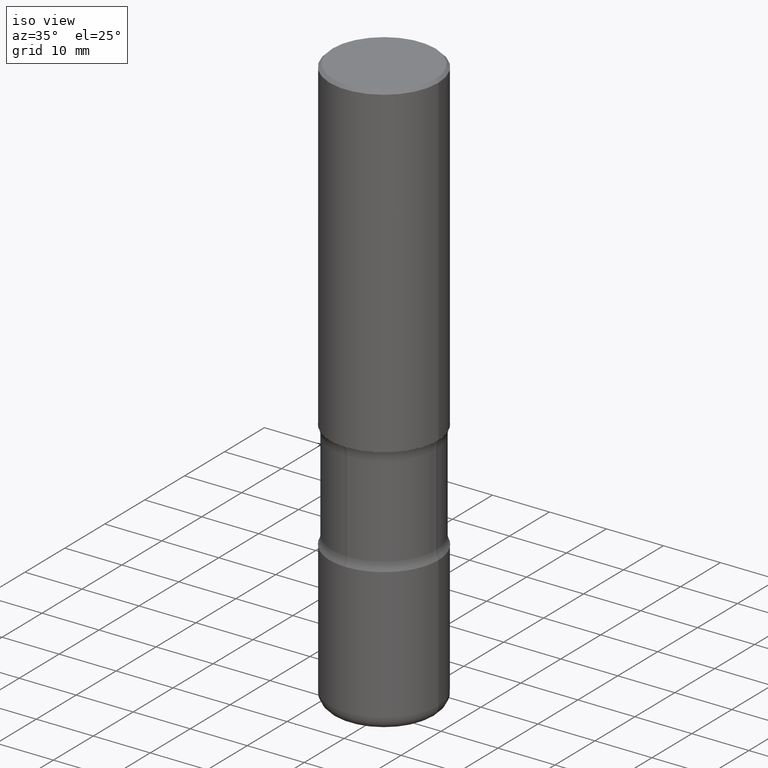
[diagram: clean part render]
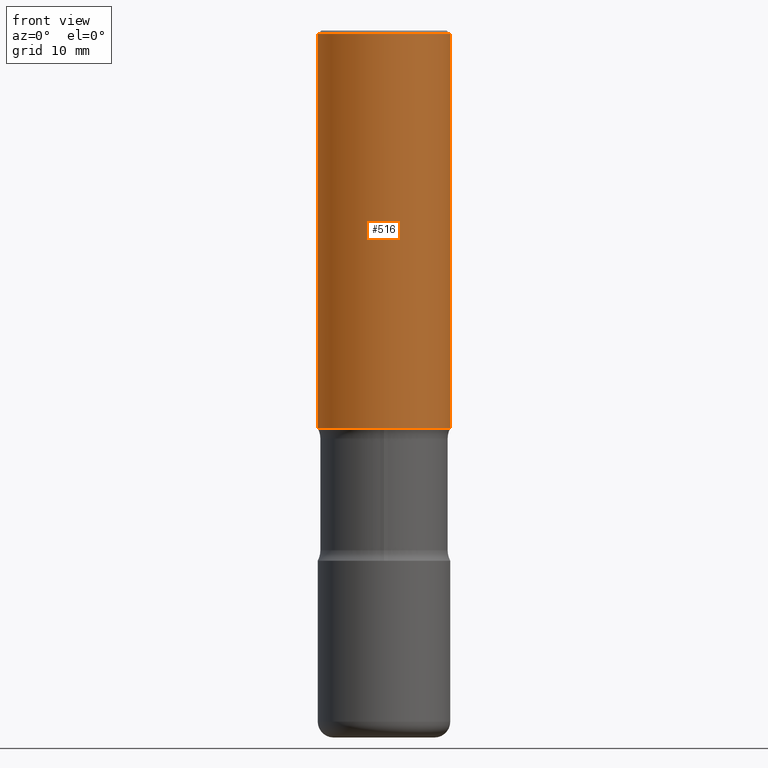
[diagram: tour spotlight — one face highlighted and labeled with its STEP entity id]
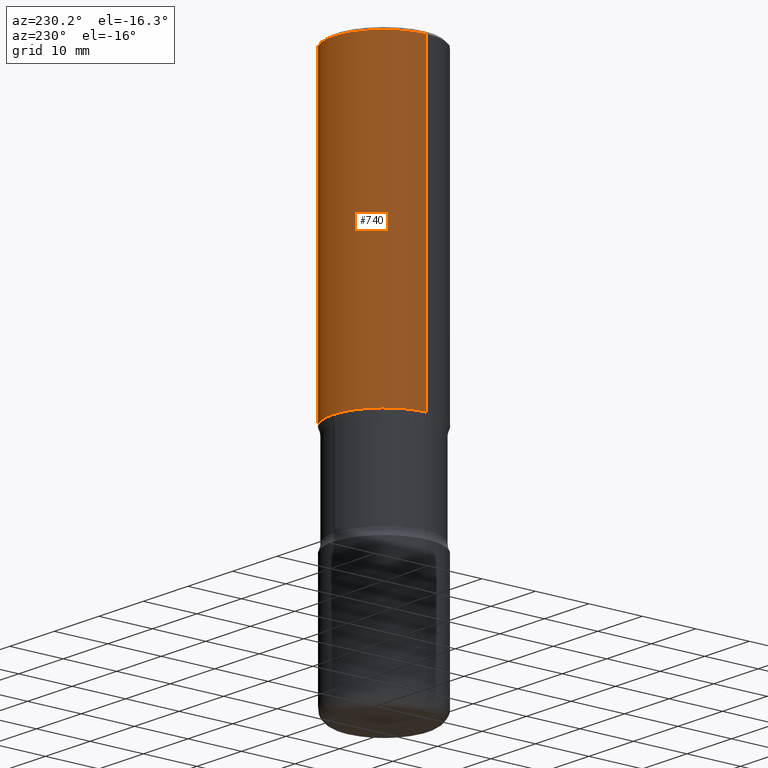
[diagram: tour spotlight — one face highlighted and labeled with its STEP entity id]
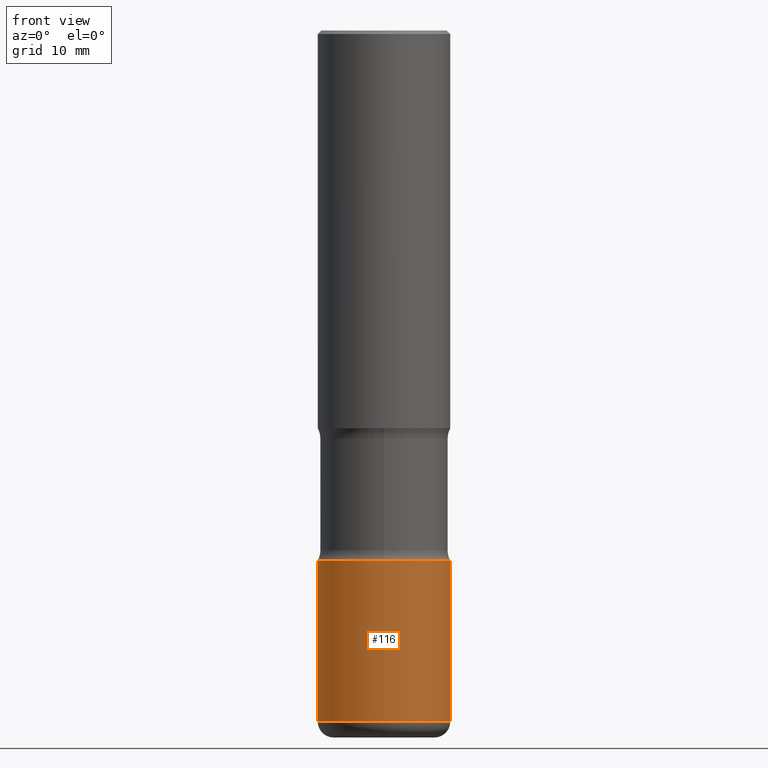
[diagram: tour spotlight — one face highlighted and labeled with its STEP entity id]
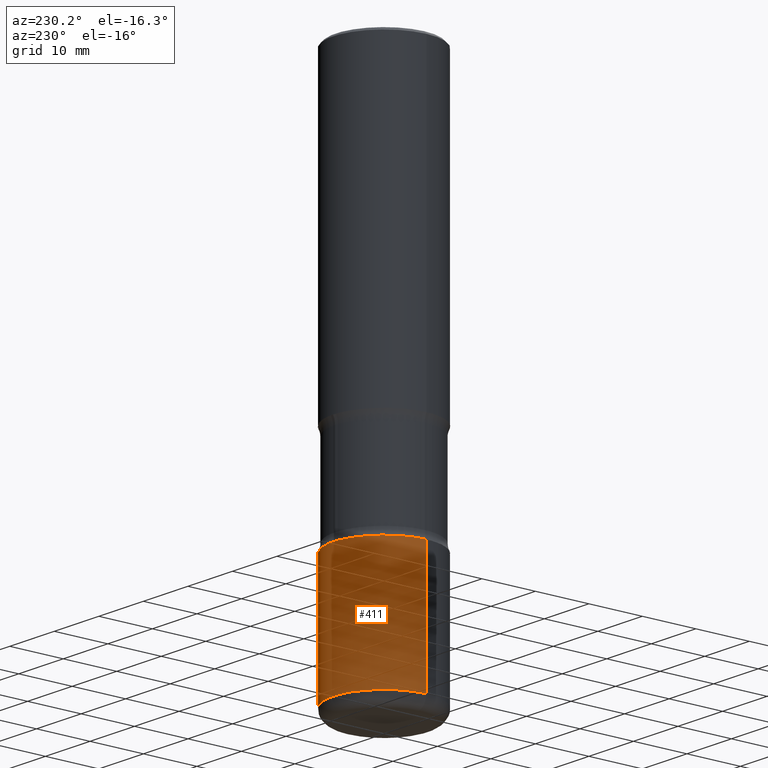
[diagram: tour spotlight — one face highlighted and labeled with its STEP entity id]
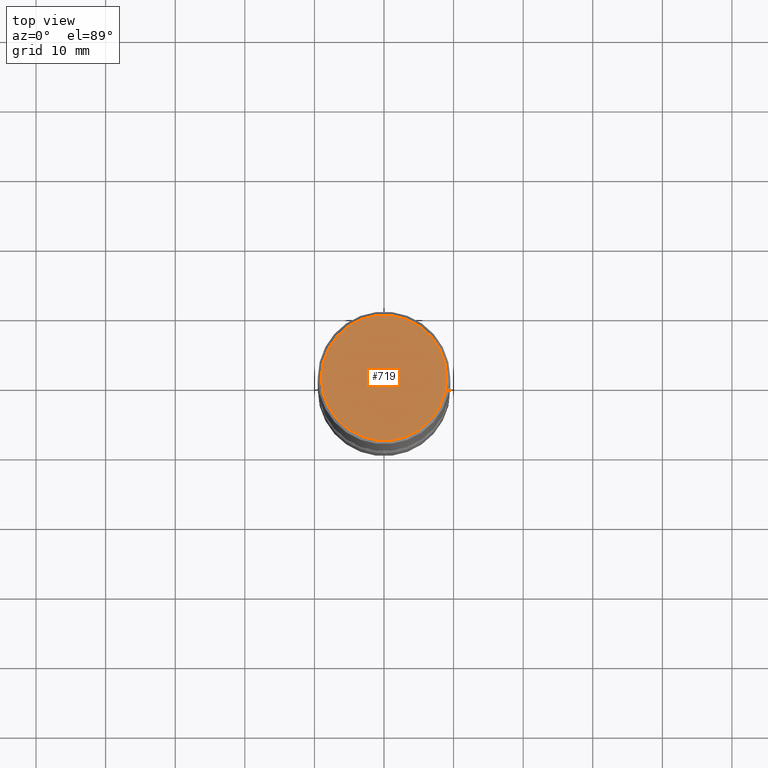
[diagram: tour spotlight — one face highlighted and labeled with its STEP entity id]
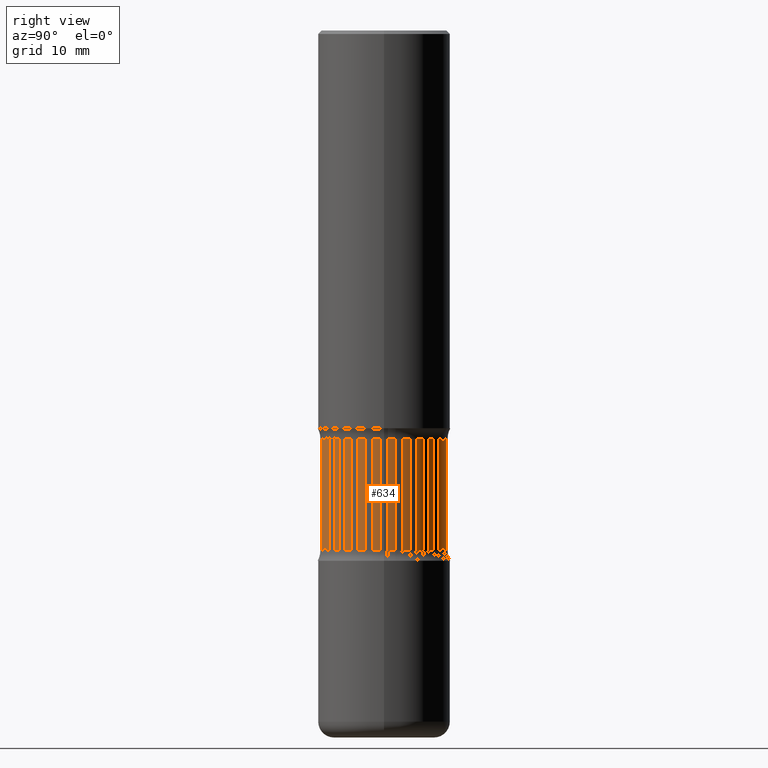
[diagram: tour spotlight — one face highlighted and labeled with its STEP entity id]
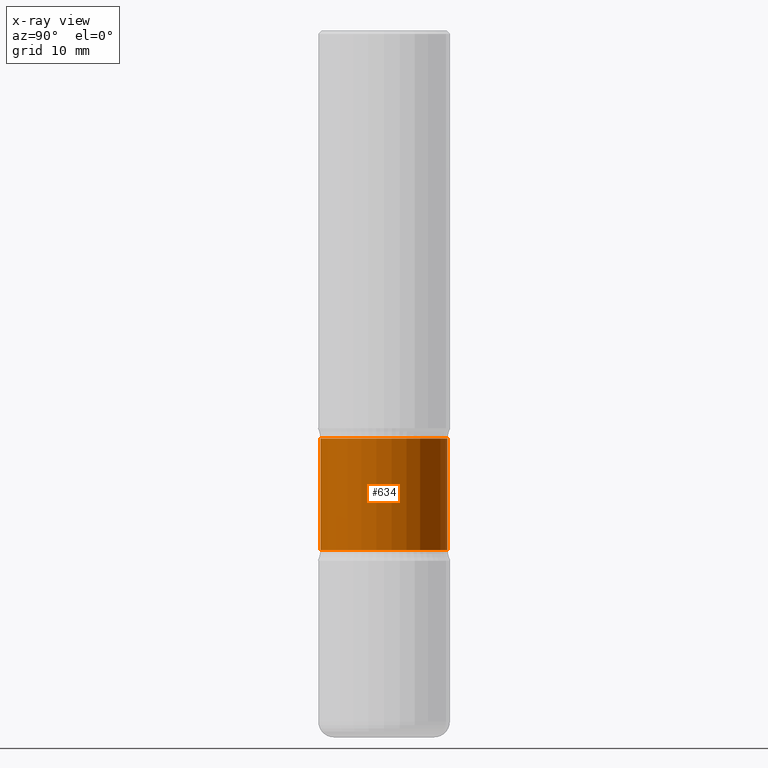
[diagram: x-ray of the same camera — body ghosted, this tour face saturated]
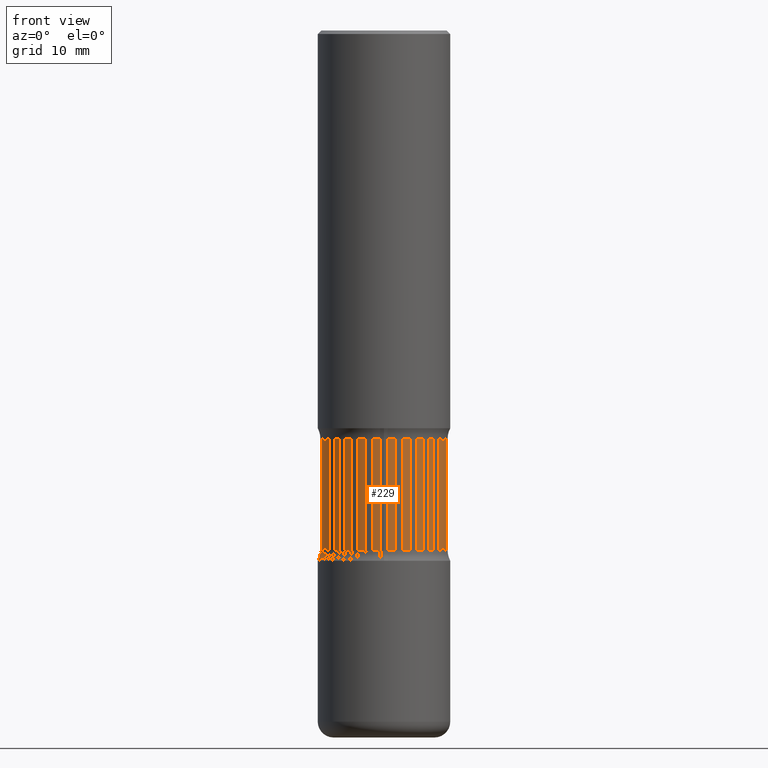
[diagram: tour spotlight — one face highlighted and labeled with its STEP entity id]
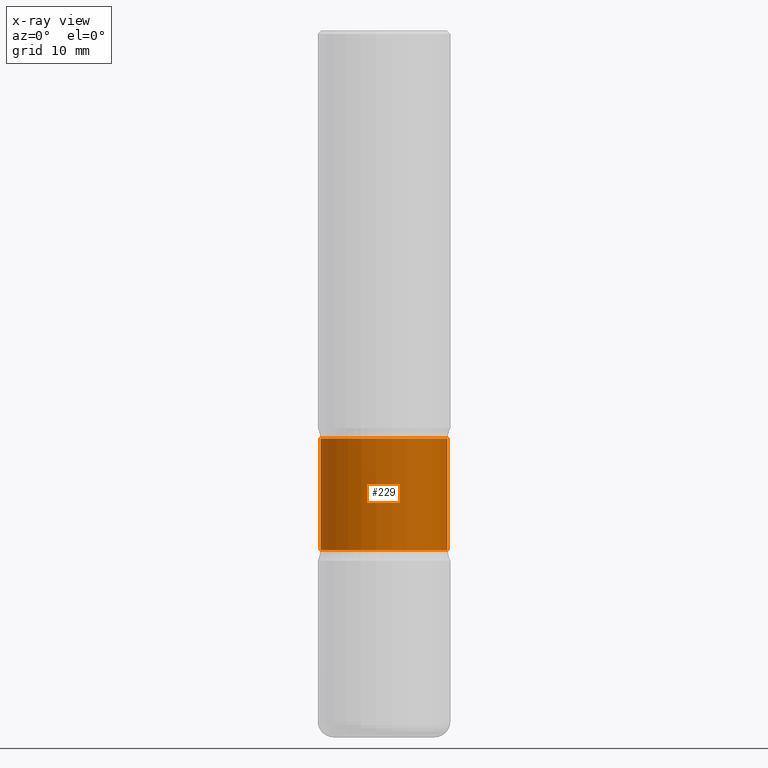
[diagram: x-ray of the same camera — body ghosted, this tour face saturated]
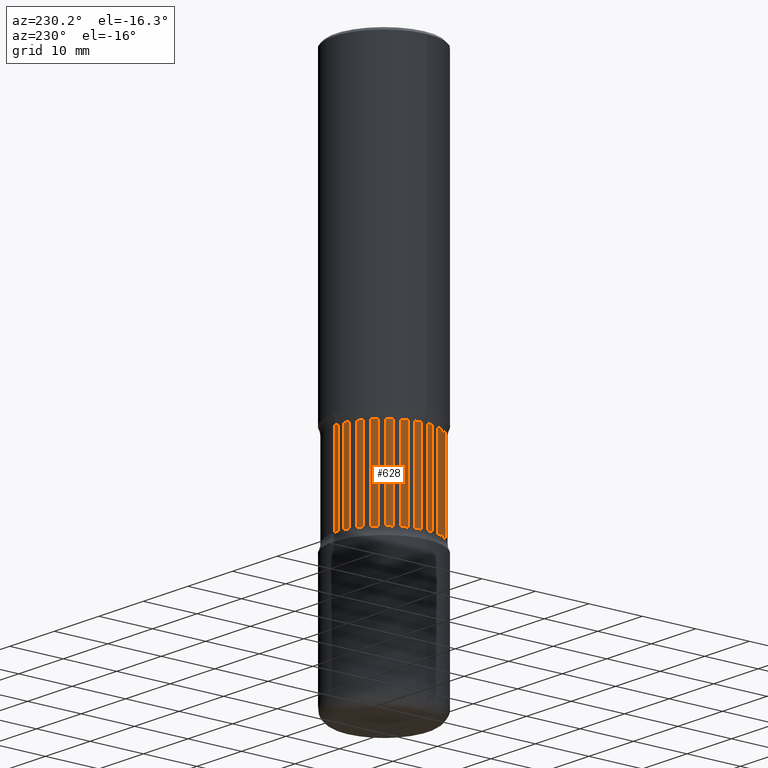
[diagram: tour spotlight — one face highlighted and labeled with its STEP entity id]
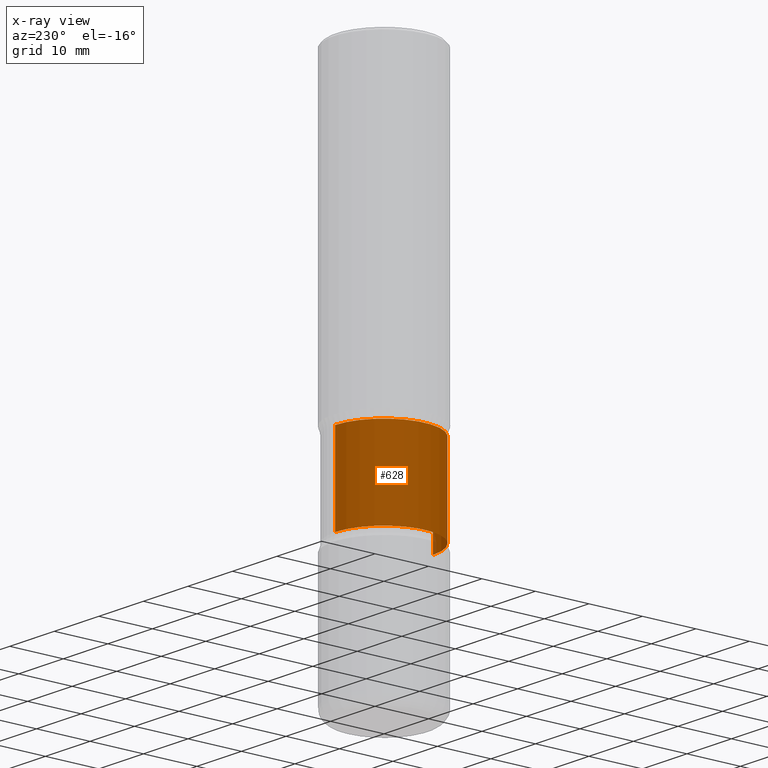
[diagram: x-ray of the same camera — body ghosted, this tour face saturated]
A machine part: a face-by-face anatomy tour. The part has 30 B-rep faces; the first image is the clean iso view, then the 8 largest visible faces are spotlighted one at a time (largest first), each with its STEP entity span.

Face 1 — front view, entity #516. In plain terms, the highlighted cylindrical surface (partial cylindrical patch) has radius 9.525 mm, axis along (-0, 0, 1).
Definition (entity closure, byte-faithful):
#9 = FACE_OUTER_BOUND ( 'NONE', #256, .T. ) ;
#36 = DIRECTION ( 'NONE',  ( -2.445468806185136877E-29, 3.491481338843145188E-15, 1.000000000000000000 ) ) ;
#93 = DIRECTION ( 'NONE',  ( -2.445468806185136597E-29, 3.491481338843145583E-15, 1.000000000000000000 ) ) ;
#97 = EDGE_CURVE ( 'NONE', #450, #99, #644, .T. ) ;
#98 = AXIS2_PLACEMENT_3D ( 'NONE', #477, #93, #590 ) ;
#99 = VERTEX_POINT ( 'NONE', #221 ) ;
#107 = CARTESIAN_POINT ( 'NONE',  ( 0.3749999999999996669, -2.642516375941185662E-15, -0.02000000000000008715 ) ) ;
#115 = CARTESIAN_POINT ( 'NONE',  ( -0.3749999999999998335, 2.664535259100374514E-15, -1.844600658845588757E-29 ) ) ;
#153 = CARTESIAN_POINT ( 'NONE',  ( 0.3749999999999998335, -2.618611004132348439E-15, 1.828566290923475082E-29 ) ) ;
#156 = CARTESIAN_POINT ( 'NONE',  ( -0.3749999999999996669, 2.548781377355484352E-15, -0.02000000000000008715 ) ) ;
#160 = LINE ( 'NONE', #153, #288 ) ;
#178 = LINE ( 'NONE', #115, #532 ) ;
#221 = CARTESIAN_POINT ( 'NONE',  ( 0.3750000000000000555, -1.047444401652942689E-14, -2.250000000000000000 ) ) ;
#230 = VERTEX_POINT ( 'NONE', #156 ) ;
#256 = EDGE_LOOP ( 'NONE', ( #746, #386, #766, #560 ) ) ;
#264 = CYLINDRICAL_SURFACE ( 'NONE', #681, 0.3749999999999998335 ) ;
#284 = VERTEX_POINT ( 'NONE', #107 ) ;
#288 = VECTOR ( 'NONE', #36, 39.37007874015748143 ) ;
#297 = DIRECTION ( 'NONE',  ( -2.445468806185136597E-29, 3.491481338843145583E-15, 1.000000000000000000 ) ) ;
#366 = DIRECTION ( 'NONE',  ( 1.000000000000000000, -6.982962677686266711E-15, 0.000000000000000000 ) ) ;
#386 = ORIENTED_EDGE ( 'NONE', *, *, #97, .T. ) ;
#402 = EDGE_CURVE ( 'NONE', #450, #230, #178, .T. ) ;
#450 = VERTEX_POINT ( 'NONE', #540 ) ;
#461 = EDGE_CURVE ( 'NONE', #230, #284, #652, .T. ) ;
#477 = CARTESIAN_POINT ( 'NONE',  ( 5.502304813916557343E-29, -7.855833012397078448E-15, -2.250000000000000000 ) ) ;
#489 = DIRECTION ( 'NONE',  ( -2.445468806185136877E-29, 3.491481338843145188E-15, 1.000000000000000000 ) ) ;
#511 = DIRECTION ( 'NONE',  ( -2.445468806185136597E-29, 3.491481338843145583E-15, 1.000000000000000000 ) ) ;
#515 = CARTESIAN_POINT ( 'NONE',  ( 0.000000000000000000, 0.000000000000000000, 0.000000000000000000 ) ) ;
#516 = ADVANCED_FACE ( 'NONE', ( #9 ), #264, .T. ) ;
#532 = VECTOR ( 'NONE', #489, 39.37007874015748143 ) ;
#540 = CARTESIAN_POINT ( 'NONE',  ( -0.3749999999999999445, -1.298296060486593796E-15, -2.250000000000000000 ) ) ;
#560 = ORIENTED_EDGE ( 'NONE', *, *, #461, .F. ) ;
#590 = DIRECTION ( 'NONE',  ( 1.000000000000000000, -6.982962677686264344E-15, 0.000000000000000000 ) ) ;
#644 = CIRCLE ( 'NONE', #98, 0.3750000000000000555 ) ;
#652 = CIRCLE ( 'NONE', #727, 0.3749999999999996669 ) ;
#681 = AXIS2_PLACEMENT_3D ( 'NONE', #515, #511, #744 ) ;
#688 = EDGE_CURVE ( 'NONE', #99, #284, #160, .T. ) ;
#727 = AXIS2_PLACEMENT_3D ( 'NONE', #788, #297, #366 ) ;
#744 = DIRECTION ( 'NONE',  ( 1.000000000000000000, -6.982962677686265922E-15, 4.876176775795935793E-29 ) ) ;
#746 = ORIENTED_EDGE ( 'NONE', *, *, #402, .F. ) ;
#766 = ORIENTED_EDGE ( 'NONE', *, *, #688, .T. ) ;
#788 = CARTESIAN_POINT ( 'NONE',  ( 4.890937612370294178E-31, -6.982962677686321191E-17, -0.02000000000000008715 ) ) ;

Face 2 — auxiliary view, entity #740. In plain terms, the highlighted cylindrical surface (partial cylindrical patch) has radius 9.525 mm, axis along (-0, 0, 1).
Definition (entity closure, byte-faithful):
#22 = FACE_OUTER_BOUND ( 'NONE', #572, .T. ) ;
#36 = DIRECTION ( 'NONE',  ( -2.445468806185136877E-29, 3.491481338843145188E-15, 1.000000000000000000 ) ) ;
#99 = VERTEX_POINT ( 'NONE', #221 ) ;
#107 = CARTESIAN_POINT ( 'NONE',  ( 0.3749999999999996669, -2.642516375941185662E-15, -0.02000000000000008715 ) ) ;
#115 = CARTESIAN_POINT ( 'NONE',  ( -0.3749999999999998335, 2.664535259100374514E-15, -1.844600658845588757E-29 ) ) ;
#135 = CIRCLE ( 'NONE', #656, 0.3749999999999996669 ) ;
#136 = EDGE_CURVE ( 'NONE', #284, #230, #135, .T. ) ;
#145 = AXIS2_PLACEMENT_3D ( 'NONE', #271, #762, #216 ) ;
#153 = CARTESIAN_POINT ( 'NONE',  ( 0.3749999999999998335, -2.618611004132348439E-15, 1.828566290923475082E-29 ) ) ;
#156 = CARTESIAN_POINT ( 'NONE',  ( -0.3749999999999996669, 2.548781377355484352E-15, -0.02000000000000008715 ) ) ;
#157 = CARTESIAN_POINT ( 'NONE',  ( 4.890937612370294178E-31, -6.982962677686321191E-17, -0.02000000000000008715 ) ) ;
#160 = LINE ( 'NONE', #153, #288 ) ;
#176 = CARTESIAN_POINT ( 'NONE',  ( 5.502304813916557343E-29, -7.855833012397078448E-15, -2.250000000000000000 ) ) ;
#178 = LINE ( 'NONE', #115, #532 ) ;
#193 = CIRCLE ( 'NONE', #465, 0.3750000000000000555 ) ;
#216 = DIRECTION ( 'NONE',  ( 1.000000000000000000, -6.982962677686265922E-15, 4.876176775795935793E-29 ) ) ;
#221 = CARTESIAN_POINT ( 'NONE',  ( 0.3750000000000000555, -1.047444401652942689E-14, -2.250000000000000000 ) ) ;
#230 = VERTEX_POINT ( 'NONE', #156 ) ;
#247 = DIRECTION ( 'NONE',  ( -2.445468806185136597E-29, 3.491481338843145583E-15, 1.000000000000000000 ) ) ;
#271 = CARTESIAN_POINT ( 'NONE',  ( 0.000000000000000000, 0.000000000000000000, 0.000000000000000000 ) ) ;
#284 = VERTEX_POINT ( 'NONE', #107 ) ;
#288 = VECTOR ( 'NONE', #36, 39.37007874015748143 ) ;
#316 = ORIENTED_EDGE ( 'NONE', *, *, #136, .F. ) ;
#327 = ORIENTED_EDGE ( 'NONE', *, *, #402, .T. ) ;
#365 = EDGE_CURVE ( 'NONE', #99, #450, #193, .T. ) ;
#401 = DIRECTION ( 'NONE',  ( -2.445468806185136597E-29, 3.491481338843145583E-15, 1.000000000000000000 ) ) ;
#402 = EDGE_CURVE ( 'NONE', #450, #230, #178, .T. ) ;
#450 = VERTEX_POINT ( 'NONE', #540 ) ;
#451 = CYLINDRICAL_SURFACE ( 'NONE', #145, 0.3749999999999998335 ) ;
#465 = AXIS2_PLACEMENT_3D ( 'NONE', #176, #247, #486 ) ;
#486 = DIRECTION ( 'NONE',  ( 1.000000000000000000, -6.982962677686264344E-15, 0.000000000000000000 ) ) ;
#489 = DIRECTION ( 'NONE',  ( -2.445468806185136877E-29, 3.491481338843145188E-15, 1.000000000000000000 ) ) ;
#532 = VECTOR ( 'NONE', #489, 39.37007874015748143 ) ;
#540 = CARTESIAN_POINT ( 'NONE',  ( -0.3749999999999999445, -1.298296060486593796E-15, -2.250000000000000000 ) ) ;
#572 = EDGE_LOOP ( 'NONE', ( #786, #327, #316, #658 ) ) ;
#656 = AXIS2_PLACEMENT_3D ( 'NONE', #157, #401, #778 ) ;
#658 = ORIENTED_EDGE ( 'NONE', *, *, #688, .F. ) ;
#688 = EDGE_CURVE ( 'NONE', #99, #284, #160, .T. ) ;
#740 = ADVANCED_FACE ( 'NONE', ( #22 ), #451, .T. ) ;
#762 = DIRECTION ( 'NONE',  ( -2.445468806185136597E-29, 3.491481338843145583E-15, 1.000000000000000000 ) ) ;
#778 = DIRECTION ( 'NONE',  ( 1.000000000000000000, -6.982962677686266711E-15, 0.000000000000000000 ) ) ;
#786 = ORIENTED_EDGE ( 'NONE', *, *, #365, .T. ) ;

Face 3 — front view, entity #116. In plain terms, the highlighted cylindrical surface (partial cylindrical patch) has radius 9.525 mm, axis along (-0, 0, 1).
Definition (entity closure, byte-faithful):
#13 = CARTESIAN_POINT ( 'NONE',  ( 9.561783032183883600E-29, -1.365169203487670064E-14, -3.910000000000000142 ) ) ;
#28 = DIRECTION ( 'NONE',  ( -2.445468806185136597E-29, 3.491481338843145583E-15, 1.000000000000000000 ) ) ;
#31 = VERTEX_POINT ( 'NONE', #409 ) ;
#33 = FACE_OUTER_BOUND ( 'NONE', #605, .T. ) ;
#49 = CARTESIAN_POINT ( 'NONE',  ( -0.3749999999999999445, -1.098715677577632337E-14, -3.910000000000000142 ) ) ;
#113 = DIRECTION ( 'NONE',  ( -2.445468806185136597E-29, 3.491481338843145583E-15, 1.000000000000000000 ) ) ;
#116 = ADVANCED_FACE ( 'NONE', ( #33 ), #585, .T. ) ;
#138 = VERTEX_POINT ( 'NONE', #162 ) ;
#162 = CARTESIAN_POINT ( 'NONE',  ( -0.3750000000000000555, -9.398532766602692013E-15, -2.999999999999999556 ) ) ;
#164 = EDGE_CURVE ( 'NONE', #138, #318, #395, .T. ) ;
#290 = ORIENTED_EDGE ( 'NONE', *, *, #730, .F. ) ;
#296 = AXIS2_PLACEMENT_3D ( 'NONE', #524, #28, #718 ) ;
#318 = VERTEX_POINT ( 'NONE', #680 ) ;
#370 = CARTESIAN_POINT ( 'NONE',  ( 0.3750000000000000555, -2.618611004132350016E-15, 1.828566290923476203E-29 ) ) ;
#377 = LINE ( 'NONE', #370, #546 ) ;
#395 = CIRCLE ( 'NONE', #478, 0.3750000000000000555 ) ;
#409 = CARTESIAN_POINT ( 'NONE',  ( 0.3749999999999999445, -1.627030303900905066E-14, -3.910000000000000142 ) ) ;
#410 = VERTEX_POINT ( 'NONE', #49 ) ;
#425 = VECTOR ( 'NONE', #531, 39.37007874015748143 ) ;
#444 = DIRECTION ( 'NONE',  ( -2.445468806185136597E-29, 3.491481338843145583E-15, 1.000000000000000000 ) ) ;
#452 = ORIENTED_EDGE ( 'NONE', *, *, #490, .T. ) ;
#478 = AXIS2_PLACEMENT_3D ( 'NONE', #482, #113, #607 ) ;
#482 = CARTESIAN_POINT ( 'NONE',  ( 7.336406418555408669E-29, -1.047444401652943478E-14, -2.999999999999999556 ) ) ;
#490 = EDGE_CURVE ( 'NONE', #410, #31, #624, .T. ) ;
#524 = CARTESIAN_POINT ( 'NONE',  ( 0.000000000000000000, 0.000000000000000000, 0.000000000000000000 ) ) ;
#527 = EDGE_CURVE ( 'NONE', #31, #318, #377, .T. ) ;
#531 = DIRECTION ( 'NONE',  ( -2.445468806185136877E-29, 3.491481338843145188E-15, 1.000000000000000000 ) ) ;
#546 = VECTOR ( 'NONE', #619, 39.37007874015748143 ) ;
#578 = CARTESIAN_POINT ( 'NONE',  ( -0.3750000000000000555, 2.664535259100376091E-15, -1.844600658845589598E-29 ) ) ;
#585 = CYLINDRICAL_SURFACE ( 'NONE', #296, 0.3750000000000000555 ) ;
#605 = EDGE_LOOP ( 'NONE', ( #290, #452, #758, #753 ) ) ;
#607 = DIRECTION ( 'NONE',  ( 1.000000000000000000, -6.982962677686266711E-15, 0.000000000000000000 ) ) ;
#619 = DIRECTION ( 'NONE',  ( -2.445468806185136877E-29, 3.491481338843145188E-15, 1.000000000000000000 ) ) ;
#624 = CIRCLE ( 'NONE', #779, 0.3750000000000000555 ) ;
#641 = LINE ( 'NONE', #578, #425 ) ;
#680 = CARTESIAN_POINT ( 'NONE',  ( 0.3750000000000000555, -1.309305502066178637E-14, -2.999999999999999556 ) ) ;
#690 = DIRECTION ( 'NONE',  ( 1.000000000000000000, -6.982962677686266711E-15, 0.000000000000000000 ) ) ;
#718 = DIRECTION ( 'NONE',  ( 1.000000000000000000, -6.982962677686265922E-15, 4.876176775795935793E-29 ) ) ;
#730 = EDGE_CURVE ( 'NONE', #410, #138, #641, .T. ) ;
#753 = ORIENTED_EDGE ( 'NONE', *, *, #164, .F. ) ;
#758 = ORIENTED_EDGE ( 'NONE', *, *, #527, .T. ) ;
#779 = AXIS2_PLACEMENT_3D ( 'NONE', #13, #444, #690 ) ;

Face 4 — auxiliary view, entity #411. In plain terms, the highlighted cylindrical surface (partial cylindrical patch) has radius 9.525 mm, axis along (-0, 0, 1).
Definition (entity closure, byte-faithful):
#12 = ORIENTED_EDGE ( 'NONE', *, *, #527, .F. ) ;
#31 = VERTEX_POINT ( 'NONE', #409 ) ;
#49 = CARTESIAN_POINT ( 'NONE',  ( -0.3749999999999999445, -1.098715677577632337E-14, -3.910000000000000142 ) ) ;
#59 = DIRECTION ( 'NONE',  ( -2.445468806185136597E-29, 3.491481338843145583E-15, 1.000000000000000000 ) ) ;
#64 = DIRECTION ( 'NONE',  ( -2.445468806185136597E-29, 3.491481338843145583E-15, 1.000000000000000000 ) ) ;
#70 = AXIS2_PLACEMENT_3D ( 'NONE', #629, #64, #312 ) ;
#102 = ORIENTED_EDGE ( 'NONE', *, *, #612, .T. ) ;
#125 = CARTESIAN_POINT ( 'NONE',  ( 9.561783032183883600E-29, -1.365169203487670064E-14, -3.910000000000000142 ) ) ;
#138 = VERTEX_POINT ( 'NONE', #162 ) ;
#162 = CARTESIAN_POINT ( 'NONE',  ( -0.3750000000000000555, -9.398532766602692013E-15, -2.999999999999999556 ) ) ;
#189 = DIRECTION ( 'NONE',  ( 1.000000000000000000, -6.982962677686266711E-15, 0.000000000000000000 ) ) ;
#208 = EDGE_CURVE ( 'NONE', #318, #138, #799, .T. ) ;
#224 = ORIENTED_EDGE ( 'NONE', *, *, #208, .F. ) ;
#249 = AXIS2_PLACEMENT_3D ( 'NONE', #125, #59, #189 ) ;
#300 = FACE_OUTER_BOUND ( 'NONE', #715, .T. ) ;
#312 = DIRECTION ( 'NONE',  ( 1.000000000000000000, -6.982962677686266711E-15, 0.000000000000000000 ) ) ;
#318 = VERTEX_POINT ( 'NONE', #680 ) ;
#370 = CARTESIAN_POINT ( 'NONE',  ( 0.3750000000000000555, -2.618611004132350016E-15, 1.828566290923476203E-29 ) ) ;
#377 = LINE ( 'NONE', #370, #546 ) ;
#409 = CARTESIAN_POINT ( 'NONE',  ( 0.3749999999999999445, -1.627030303900905066E-14, -3.910000000000000142 ) ) ;
#410 = VERTEX_POINT ( 'NONE', #49 ) ;
#411 = ADVANCED_FACE ( 'NONE', ( #300 ), #493, .T. ) ;
#425 = VECTOR ( 'NONE', #531, 39.37007874015748143 ) ;
#493 = CYLINDRICAL_SURFACE ( 'NONE', #611, 0.3750000000000000555 ) ;
#527 = EDGE_CURVE ( 'NONE', #31, #318, #377, .T. ) ;
#531 = DIRECTION ( 'NONE',  ( -2.445468806185136877E-29, 3.491481338843145188E-15, 1.000000000000000000 ) ) ;
#545 = CARTESIAN_POINT ( 'NONE',  ( 0.000000000000000000, 0.000000000000000000, 0.000000000000000000 ) ) ;
#546 = VECTOR ( 'NONE', #619, 39.37007874015748143 ) ;
#578 = CARTESIAN_POINT ( 'NONE',  ( -0.3750000000000000555, 2.664535259100376091E-15, -1.844600658845589598E-29 ) ) ;
#611 = AXIS2_PLACEMENT_3D ( 'NONE', #545, #664, #734 ) ;
#612 = EDGE_CURVE ( 'NONE', #31, #410, #764, .T. ) ;
#619 = DIRECTION ( 'NONE',  ( -2.445468806185136877E-29, 3.491481338843145188E-15, 1.000000000000000000 ) ) ;
#629 = CARTESIAN_POINT ( 'NONE',  ( 7.336406418555408669E-29, -1.047444401652943478E-14, -2.999999999999999556 ) ) ;
#641 = LINE ( 'NONE', #578, #425 ) ;
#664 = DIRECTION ( 'NONE',  ( -2.445468806185136597E-29, 3.491481338843145583E-15, 1.000000000000000000 ) ) ;
#680 = CARTESIAN_POINT ( 'NONE',  ( 0.3750000000000000555, -1.309305502066178637E-14, -2.999999999999999556 ) ) ;
#700 = ORIENTED_EDGE ( 'NONE', *, *, #730, .T. ) ;
#715 = EDGE_LOOP ( 'NONE', ( #102, #700, #224, #12 ) ) ;
#730 = EDGE_CURVE ( 'NONE', #410, #138, #641, .T. ) ;
#734 = DIRECTION ( 'NONE',  ( 1.000000000000000000, -6.982962677686265922E-15, 4.876176775795935793E-29 ) ) ;
#764 = CIRCLE ( 'NONE', #249, 0.3750000000000000555 ) ;
#799 = CIRCLE ( 'NONE', #70, 0.3750000000000000555 ) ;

Face 5 — top view, entity #719. In plain terms, the highlighted planar face has unit normal (0, -0, -1).
Definition (entity closure, byte-faithful):
#8 = EDGE_LOOP ( 'NONE', ( #194, #771 ) ) ;
#24 = AXIS2_PLACEMENT_3D ( 'NONE', #757, #636, #803 ) ;
#142 = DIRECTION ( 'NONE',  ( -1.000000000000000000, 6.982962677686265922E-15, -4.876176775795935793E-29 ) ) ;
#158 = AXIS2_PLACEMENT_3D ( 'NONE', #649, #776, #142 ) ;
#188 = CIRCLE ( 'NONE', #645, 0.3549999999999996492 ) ;
#194 = ORIENTED_EDGE ( 'NONE', *, *, #550, .T. ) ;
#203 = VERTEX_POINT ( 'NONE', #259 ) ;
#238 = DIRECTION ( 'NONE',  ( -2.445468806185136597E-29, 3.491481338843145583E-15, 1.000000000000000000 ) ) ;
#259 = CARTESIAN_POINT ( 'NONE',  ( 0.3549999999999996492, -2.538996582575038287E-15, 4.268512490117958041E-18 ) ) ;
#285 = FACE_OUTER_BOUND ( 'NONE', #8, .T. ) ;
#323 = EDGE_CURVE ( 'NONE', #203, #520, #188, .T. ) ;
#324 = CIRCLE ( 'NONE', #24, 0.3549999999999996492 ) ;
#354 = DIRECTION ( 'NONE',  ( 1.000000000000000000, -6.982962677686265922E-15, 4.876231632511992667E-29 ) ) ;
#520 = VERTEX_POINT ( 'NONE', #750 ) ;
#550 = EDGE_CURVE ( 'NONE', #520, #203, #324, .T. ) ;
#583 = PLANE ( 'NONE',  #158 ) ;
#636 = DIRECTION ( 'NONE',  ( -2.445468806185136597E-29, 3.491481338843145583E-15, 1.000000000000000000 ) ) ;
#645 = AXIS2_PLACEMENT_3D ( 'NONE', #801, #238, #354 ) ;
#649 = CARTESIAN_POINT ( 'NONE',  ( 2.478951750578621842E-15, 0.3549999999999996492, -1.237341619044265047E-15 ) ) ;
#719 = ADVANCED_FACE ( 'NONE', ( #285 ), #583, .F. ) ;
#750 = CARTESIAN_POINT ( 'NONE',  ( -0.3549999999999996492, 2.513866563967053097E-15, 4.268512490082953109E-18 ) ) ;
#757 = CARTESIAN_POINT ( 'NONE',  ( -1.043851414335219820E-46, 1.490343170380447200E-32, 4.268512490100411279E-18 ) ) ;
#771 = ORIENTED_EDGE ( 'NONE', *, *, #323, .T. ) ;
#776 = DIRECTION ( 'NONE',  ( 2.438088387897960049E-29, -3.491481338843145188E-15, -1.000000000000000000 ) ) ;
#801 = CARTESIAN_POINT ( 'NONE',  ( -1.043851414335219820E-46, 1.490343170380447200E-32, 4.268512490100411279E-18 ) ) ;
#803 = DIRECTION ( 'NONE',  ( 1.000000000000000000, -6.982962677686265922E-15, 4.876231632511992667E-29 ) ) ;

Face 6 — right view, entity #634. An x-ray twin of the same camera follows (body ghosted, this face saturated) — the face is partly hidden behind the body. In plain terms, the highlighted cylindrical surface (partial cylindrical patch) has radius 9.144 mm, axis along (0, -0, -1).
Definition (entity closure, byte-faithful):
#2 = VERTEX_POINT ( 'NONE', #105 ) ;
#25 = EDGE_CURVE ( 'NONE', #2, #510, #500, .T. ) ;
#74 = ORIENTED_EDGE ( 'NONE', *, *, #235, .T. ) ;
#103 = CARTESIAN_POINT ( 'NONE',  ( -2.469779279197650562E-15, -0.3600000000000135314, -3.991357109550792259 ) ) ;
#105 = CARTESIAN_POINT ( 'NONE',  ( 2.513866563967109106E-15, 0.3599999999999914935, -2.309371710435192071 ) ) ;
#111 = EDGE_CURVE ( 'NONE', #269, #152, #513, .T. ) ;
#123 = AXIS2_PLACEMENT_3D ( 'NONE', #534, #726, #580 ) ;
#139 = CARTESIAN_POINT ( 'NONE',  ( -2.521233014180980941E-15, -0.3600000000000076472, -2.309371710435189406 ) ) ;
#152 = VERTEX_POINT ( 'NONE', #498 ) ;
#171 = DIRECTION ( 'NONE',  ( 2.446211666097023826E-29, -3.490417521168362637E-15, -1.000000000000000000 ) ) ;
#235 = EDGE_CURVE ( 'NONE', #510, #152, #584, .T. ) ;
#269 = VERTEX_POINT ( 'NONE', #579 ) ;
#275 = CYLINDRICAL_SURFACE ( 'NONE', #414, 0.3599999999999995981 ) ;
#276 = VECTOR ( 'NONE', #791, 39.37007874015748143 ) ;
#281 = DIRECTION ( 'NONE',  ( 6.982962677686265133E-15, 1.000000000000000000, -3.794233324533703056E-15 ) ) ;
#292 = DIRECTION ( 'NONE',  ( 2.446211666097023545E-29, -3.490417521168362243E-15, -1.000000000000000000 ) ) ;
#382 = ORIENTED_EDGE ( 'NONE', *, *, #25, .T. ) ;
#388 = AXIS2_PLACEMENT_3D ( 'NONE', #768, #171, #281 ) ;
#414 = AXIS2_PLACEMENT_3D ( 'NONE', #659, #519, #773 ) ;
#446 = ORIENTED_EDGE ( 'NONE', *, *, #111, .F. ) ;
#498 = CARTESIAN_POINT ( 'NONE',  ( -2.521233014180963980E-15, -0.3600000000000098677, -2.940628289564807929 ) ) ;
#500 = CIRCLE ( 'NONE', #388, 0.3599999999999995981 ) ;
#510 = VERTEX_POINT ( 'NONE', #139 ) ;
#513 = CIRCLE ( 'NONE', #123, 0.3599999999999996536 ) ;
#519 = DIRECTION ( 'NONE',  ( 2.446211666097023826E-29, -3.490417521168362637E-15, -1.000000000000000000 ) ) ;
#534 = CARTESIAN_POINT ( 'NONE',  ( 7.191170647852711206E-29, -1.026721195816471065E-14, -2.940628289564808817 ) ) ;
#579 = CARTESIAN_POINT ( 'NONE',  ( 2.513866563967124883E-15, 0.3599999999999893840, -2.940628289564810149 ) ) ;
#580 = DIRECTION ( 'NONE',  ( 6.982962677686265133E-15, 1.000000000000000000, -3.035386659626961893E-15 ) ) ;
#584 = LINE ( 'NONE', #103, #617 ) ;
#617 = VECTOR ( 'NONE', #292, 39.37007874015748143 ) ;
#634 = ADVANCED_FACE ( 'NONE', ( #767 ), #275, .T. ) ;
#643 = ORIENTED_EDGE ( 'NONE', *, *, #805, .F. ) ;
#659 = CARTESIAN_POINT ( 'NONE',  ( 9.761475745206785133E-29, -1.393469424144034726E-14, -3.991357109550793147 ) ) ;
#726 = DIRECTION ( 'NONE',  ( 2.446211666097023826E-29, -3.490417521168362637E-15, -1.000000000000000000 ) ) ;
#733 = CARTESIAN_POINT ( 'NONE',  ( 2.513866563967150127E-15, 0.3599999999999856648, -3.991357109550794036 ) ) ;
#767 = FACE_OUTER_BOUND ( 'NONE', #793, .T. ) ;
#768 = CARTESIAN_POINT ( 'NONE',  ( 5.646983439685339384E-29, -8.063862934017888990E-15, -2.309371710435190739 ) ) ;
#773 = DIRECTION ( 'NONE',  ( 6.982962677686265133E-15, 1.000000000000000000, -3.035386659626962681E-15 ) ) ;
#781 = LINE ( 'NONE', #733, #276 ) ;
#791 = DIRECTION ( 'NONE',  ( 2.446211666097023545E-29, -3.490417521168362243E-15, -1.000000000000000000 ) ) ;
#793 = EDGE_LOOP ( 'NONE', ( #382, #74, #446, #643 ) ) ;
#805 = EDGE_CURVE ( 'NONE', #2, #269, #781, .T. ) ;

Face 7 — front view, entity #229. An x-ray twin of the same camera follows (body ghosted, this face saturated) — the face is partly hidden behind the body. In plain terms, the highlighted cylindrical surface (partial cylindrical patch) has radius 9.144 mm, axis along (-0, 0, 1).
Definition (entity closure, byte-faithful):
#21 = VERTEX_POINT ( 'NONE', #598 ) ;
#38 = VECTOR ( 'NONE', #436, 39.37007874015748143 ) ;
#58 = CIRCLE ( 'NONE', #268, 0.3599999999999995981 ) ;
#71 = EDGE_LOOP ( 'NONE', ( #564, #514, #94, #648 ) ) ;
#94 = ORIENTED_EDGE ( 'NONE', *, *, #483, .T. ) ;
#161 = DIRECTION ( 'NONE',  ( -2.445468806185136597E-29, 3.491481338843145583E-15, 1.000000000000000000 ) ) ;
#163 = AXIS2_PLACEMENT_3D ( 'NONE', #506, #751, #398 ) ;
#182 = CARTESIAN_POINT ( 'NONE',  ( -0.3599999999999995981, -5.348236067998544144E-15, -2.309371710435190739 ) ) ;
#190 = CARTESIAN_POINT ( 'NONE',  ( 0.3599999999999995981, -1.036969957636413194E-14, -2.250000000000000000 ) ) ;
#192 = CYLINDRICAL_SURFACE ( 'NONE', #163, 0.3599999999999995981 ) ;
#229 = ADVANCED_FACE ( 'NONE', ( #745 ), #192, .T. ) ;
#232 = CARTESIAN_POINT ( 'NONE',  ( 5.647496479755672050E-29, -8.063128231436745322E-15, -2.309371710435190739 ) ) ;
#244 = EDGE_CURVE ( 'NONE', #375, #542, #657, .T. ) ;
#246 = CARTESIAN_POINT ( 'NONE',  ( -0.3599999999999996536, -7.759551853091235175E-15, -2.940628289564808817 ) ) ;
#254 = CARTESIAN_POINT ( 'NONE',  ( 0.3599999999999996536, -1.278101536145682139E-14, -2.940628289564808817 ) ) ;
#266 = EDGE_CURVE ( 'NONE', #424, #21, #58, .T. ) ;
#268 = AXIS2_PLACEMENT_3D ( 'NONE', #232, #475, #390 ) ;
#320 = CARTESIAN_POINT ( 'NONE',  ( -0.3599999999999995981, -5.297879163660720240E-15, -2.250000000000000000 ) ) ;
#325 = LINE ( 'NONE', #320, #521 ) ;
#348 = CARTESIAN_POINT ( 'NONE',  ( 7.191214752716293962E-29, -1.026714879748976790E-14, -2.940628289564808817 ) ) ;
#375 = VERTEX_POINT ( 'NONE', #246 ) ;
#381 = DIRECTION ( 'NONE',  ( -2.445468806185136877E-29, 3.491481338843145188E-15, 1.000000000000000000 ) ) ;
#390 = DIRECTION ( 'NONE',  ( 1.000000000000000000, -6.982962677686267499E-15, 0.000000000000000000 ) ) ;
#398 = DIRECTION ( 'NONE',  ( 1.000000000000000000, -6.982962677686267499E-15, 0.000000000000000000 ) ) ;
#408 = DIRECTION ( 'NONE',  ( 1.000000000000000000, -6.982962677686264344E-15, 0.000000000000000000 ) ) ;
#424 = VERTEX_POINT ( 'NONE', #182 ) ;
#436 = DIRECTION ( 'NONE',  ( -2.445468806185136877E-29, 3.491481338843145188E-15, 1.000000000000000000 ) ) ;
#475 = DIRECTION ( 'NONE',  ( -2.445468806185136597E-29, 3.491481338843145583E-15, 1.000000000000000000 ) ) ;
#483 = EDGE_CURVE ( 'NONE', #542, #21, #741, .T. ) ;
#485 = EDGE_CURVE ( 'NONE', #375, #424, #325, .T. ) ;
#506 = CARTESIAN_POINT ( 'NONE',  ( 5.502304813916557343E-29, -7.855833012397078448E-15, -2.250000000000000000 ) ) ;
#514 = ORIENTED_EDGE ( 'NONE', *, *, #244, .T. ) ;
#521 = VECTOR ( 'NONE', #381, 39.37007874015748143 ) ;
#542 = VERTEX_POINT ( 'NONE', #254 ) ;
#564 = ORIENTED_EDGE ( 'NONE', *, *, #485, .F. ) ;
#598 = CARTESIAN_POINT ( 'NONE',  ( 0.3599999999999995981, -1.057699479540379881E-14, -2.309371710435190739 ) ) ;
#648 = ORIENTED_EDGE ( 'NONE', *, *, #266, .F. ) ;
#657 = CIRCLE ( 'NONE', #785, 0.3599999999999996536 ) ;
#741 = LINE ( 'NONE', #190, #38 ) ;
#745 = FACE_OUTER_BOUND ( 'NONE', #71, .T. ) ;
#751 = DIRECTION ( 'NONE',  ( -2.445468806185136597E-29, 3.491481338843145583E-15, 1.000000000000000000 ) ) ;
#785 = AXIS2_PLACEMENT_3D ( 'NONE', #348, #161, #408 ) ;

Face 8 — auxiliary view, entity #628. An x-ray twin of the same camera follows (body ghosted, this face saturated) — the face is partly hidden behind the body. In plain terms, the highlighted cylindrical surface (partial cylindrical patch) has radius 9.144 mm, axis along (0, -0, -1).
Definition (entity closure, byte-faithful):
#2 = VERTEX_POINT ( 'NONE', #105 ) ;
#16 = EDGE_LOOP ( 'NONE', ( #582, #457, #563, #536 ) ) ;
#27 = CARTESIAN_POINT ( 'NONE',  ( 5.646983439685339384E-29, -8.063862934017888990E-15, -2.309371710435190739 ) ) ;
#32 = DIRECTION ( 'NONE',  ( 2.446211666097023826E-29, -3.490417521168362637E-15, -1.000000000000000000 ) ) ;
#61 = AXIS2_PLACEMENT_3D ( 'NONE', #27, #32, #647 ) ;
#95 = CARTESIAN_POINT ( 'NONE',  ( 9.761475745206785133E-29, -1.393469424144034726E-14, -3.991357109550793147 ) ) ;
#103 = CARTESIAN_POINT ( 'NONE',  ( -2.469779279197650562E-15, -0.3600000000000135314, -3.991357109550792259 ) ) ;
#105 = CARTESIAN_POINT ( 'NONE',  ( 2.513866563967109106E-15, 0.3599999999999914935, -2.309371710435192071 ) ) ;
#118 = CIRCLE ( 'NONE', #61, 0.3599999999999995981 ) ;
#139 = CARTESIAN_POINT ( 'NONE',  ( -2.521233014180980941E-15, -0.3600000000000076472, -2.309371710435189406 ) ) ;
#152 = VERTEX_POINT ( 'NONE', #498 ) ;
#206 = EDGE_CURVE ( 'NONE', #152, #269, #471, .T. ) ;
#235 = EDGE_CURVE ( 'NONE', #510, #152, #584, .T. ) ;
#269 = VERTEX_POINT ( 'NONE', #579 ) ;
#272 = CARTESIAN_POINT ( 'NONE',  ( 7.191170647852711206E-29, -1.026721195816471065E-14, -2.940628289564808817 ) ) ;
#276 = VECTOR ( 'NONE', #791, 39.37007874015748143 ) ;
#292 = DIRECTION ( 'NONE',  ( 2.446211666097023545E-29, -3.490417521168362243E-15, -1.000000000000000000 ) ) ;
#302 = AXIS2_PLACEMENT_3D ( 'NONE', #95, #460, #525 ) ;
#310 = CYLINDRICAL_SURFACE ( 'NONE', #302, 0.3599999999999995981 ) ;
#374 = DIRECTION ( 'NONE',  ( 6.982962677686265133E-15, 1.000000000000000000, -3.035386659626961893E-15 ) ) ;
#457 = ORIENTED_EDGE ( 'NONE', *, *, #662, .T. ) ;
#460 = DIRECTION ( 'NONE',  ( 2.446211666097023826E-29, -3.490417521168362637E-15, -1.000000000000000000 ) ) ;
#471 = CIRCLE ( 'NONE', #646, 0.3599999999999996536 ) ;
#498 = CARTESIAN_POINT ( 'NONE',  ( -2.521233014180963980E-15, -0.3600000000000098677, -2.940628289564807929 ) ) ;
#510 = VERTEX_POINT ( 'NONE', #139 ) ;
#525 = DIRECTION ( 'NONE',  ( 6.982962677686265133E-15, 1.000000000000000000, -3.035386659626962681E-15 ) ) ;
#536 = ORIENTED_EDGE ( 'NONE', *, *, #206, .F. ) ;
#563 = ORIENTED_EDGE ( 'NONE', *, *, #805, .T. ) ;
#579 = CARTESIAN_POINT ( 'NONE',  ( 2.513866563967124883E-15, 0.3599999999999893840, -2.940628289564810149 ) ) ;
#582 = ORIENTED_EDGE ( 'NONE', *, *, #235, .F. ) ;
#584 = LINE ( 'NONE', #103, #617 ) ;
#617 = VECTOR ( 'NONE', #292, 39.37007874015748143 ) ;
#622 = FACE_OUTER_BOUND ( 'NONE', #16, .T. ) ;
#623 = DIRECTION ( 'NONE',  ( 2.446211666097023826E-29, -3.490417521168362637E-15, -1.000000000000000000 ) ) ;
#628 = ADVANCED_FACE ( 'NONE', ( #622 ), #310, .T. ) ;
#646 = AXIS2_PLACEMENT_3D ( 'NONE', #272, #623, #374 ) ;
#647 = DIRECTION ( 'NONE',  ( 6.982962677686265133E-15, 1.000000000000000000, -3.794233324533703056E-15 ) ) ;
#662 = EDGE_CURVE ( 'NONE', #510, #2, #118, .T. ) ;
#733 = CARTESIAN_POINT ( 'NONE',  ( 2.513866563967150127E-15, 0.3599999999999856648, -3.991357109550794036 ) ) ;
#781 = LINE ( 'NONE', #733, #276 ) ;
#791 = DIRECTION ( 'NONE',  ( 2.446211666097023545E-29, -3.490417521168362243E-15, -1.000000000000000000 ) ) ;
#805 = EDGE_CURVE ( 'NONE', #2, #269, #781, .T. ) ;